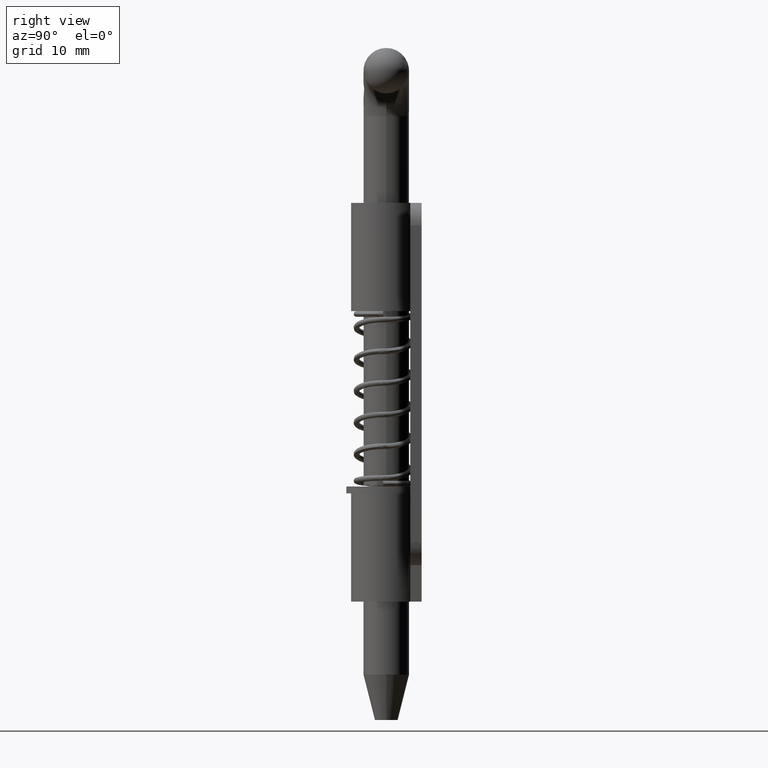
[diagram: clean part render]
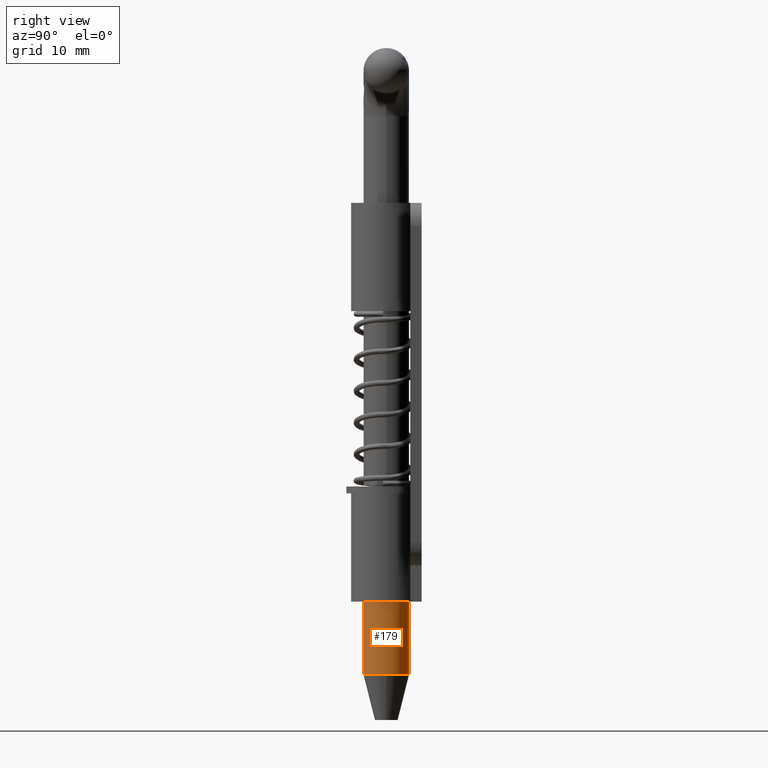
[diagram: same view with one face highlighted and labeled with its STEP entity id]
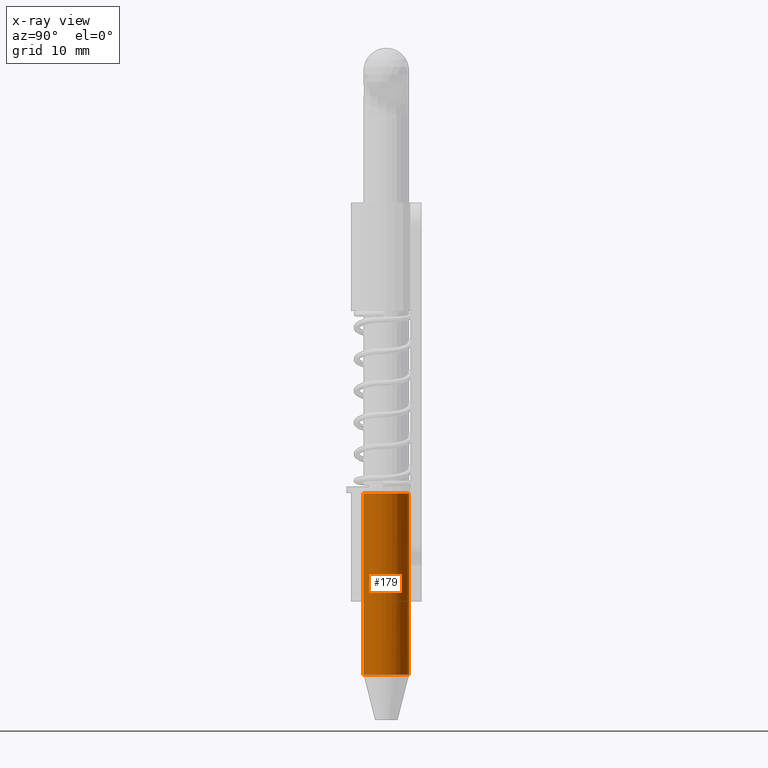
[diagram: x-ray of the same camera — body ghosted, the highlighted face saturated]
A machine part, right view. The second image highlights one B-rep face of the part: STEP entity #179.
The next image is the same camera in x-ray: the body ghosted, the highlighted face saturated — about 0% of this face is hidden behind the body in this view.
In plain terms, the highlighted cylindrical surface (edge-blend (fillet) strip) has radius 2 mm, axis along (0, 0, 1).
Its self-contained STEP definition (entity closure, byte-faithful):
#179=ADVANCED_FACE('',(#538),#537,.T.);
#537=CYLINDRICAL_SURFACE('',#1327,2.00000000000E+00);
#538=FACE_OUTER_BOUND('',#1328,.T.);
#1324=CARTESIAN_POINT('',(0.00000000000E+00,8.67292349049E-11,-7.94999980452E+00));
#1325=DIRECTION('',(0.00000000000E+00,-0.00000000000E+00,1.00000000000E+00));
#1326=DIRECTION('',(7.27366154732E-16,1.00000000000E+00,-0.00000000000E+00));
#1327=AXIS2_PLACEMENT_3D('',#1324,#1325,#1326);
#1328=EDGE_LOOP('',(#3251,#3252,#3253,#3254,#3255,#3256,#3257,#3258));
#3251=ORIENTED_EDGE('',*,*,#3625,.T.);
#3252=ORIENTED_EDGE('',*,*,#3626,.T.);
#3253=ORIENTED_EDGE('',*,*,#3621,.T.);
#3254=ORIENTED_EDGE('',*,*,#3561,.T.);
#3255=ORIENTED_EDGE('',*,*,#3545,.T.);
#3256=ORIENTED_EDGE('',*,*,#3614,.T.);
#3257=ORIENTED_EDGE('',*,*,#3539,.T.);
#3258=ORIENTED_EDGE('',*,*,#3624,.F.);
#3539=EDGE_CURVE('',#3796,#3789,#3797,.T.);
#3545=EDGE_CURVE('',#3838,#3831,#3839,.T.);
#3561=EDGE_CURVE('',#3947,#3838,#3948,.T.);
#3614=EDGE_CURVE('',#3831,#3796,#4297,.T.);
#3621=EDGE_CURVE('',#4339,#3947,#4340,.T.);
#3624=EDGE_CURVE('',#4353,#3789,#4360,.T.);
#3625=EDGE_CURVE('',#4353,#4366,#4367,.T.);
#3626=EDGE_CURVE('',#4366,#4339,#4373,.T.);
#3789=VERTEX_POINT('',#5232);
#3796=VERTEX_POINT('',#5237);
#3797=CIRCLE('',#5241,2.00000000000E+00);
#3831=VERTEX_POINT('',#5261);
#3838=VERTEX_POINT('',#5265);
#3839=CIRCLE('',#5269,2.00000000000E+00);
#3947=VERTEX_POINT('',#5335);
#3948=CIRCLE('',#5339,2.00000000000E+00);
#4297=CIRCLE('',#5559,2.00000000000E+00);
#4339=VERTEX_POINT('',#5576);
#4340=(BOUNDED_CURVE() B_SPLINE_CURVE(1,(#5577,#5578),.UNSPECIFIED.,.F.,.F.) B_SPLINE_CURVE_WITH_KNOTS((2,2),(8.33333328360E-02,9.16666665505E-01),.UNSPECIFIED.) CURVE() GEOMETRIC_REPRESENTATION_ITEM() RATIONAL_B_SPLINE_CURVE((1.00000000000E+00,1.00000000000E+00)) REPRESENTATION_ITEM('') );
#4353=VERTEX_POINT('',#5584);
#4360=(BOUNDED_CURVE() B_SPLINE_CURVE(1,(#5589,#5590),.UNSPECIFIED.,.F.,.F.) B_SPLINE_CURVE_WITH_KNOTS((2,2),(8.33333333333E-02,9.16666666667E-01),.UNSPECIFIED.) CURVE() GEOMETRIC_REPRESENTATION_ITEM() RATIONAL_B_SPLINE_CURVE((7.50000000000E-01,7.50000000000E-01)) REPRESENTATION_ITEM('') );
#4366=VERTEX_POINT('',#5591);
#4367=CIRCLE('',#5595,2.00000000000E+00);
#4373=CIRCLE('',#5599,2.00000000000E+00);
#5232=CARTESIAN_POINT('',(8.65419085602E-11,-2.00000000002E+00,0.00000000000E+00));
#5237=CARTESIAN_POINT('',(7.87446123200E-01,-1.83845821349E+00,0.00000000000E+00));
#5238=CARTESIAN_POINT('',(0.00000000000E+00,-1.92557081391E-11,0.00000000000E+00));
#5239=DIRECTION('',(-0.00000000000E+00,0.00000000000E+00,-1.00000000000E+00));
#5240=DIRECTION('',(1.03156272571E-13,1.00000000000E+00,-0.00000000000E+00));
#5241=AXIS2_PLACEMENT_3D('',#5238,#5239,#5240);
#5261=CARTESIAN_POINT('',(2.00000000000E+00,-1.92557081391E-11,0.00000000000E+00));
#5265=CARTESIAN_POINT('',(1.46446214533E+00,1.36211255964E+00,0.00000000000E+00));
#5266=CARTESIAN_POINT('',(0.00000000000E+00,-1.92557081391E-11,0.00000000000E+00));
#5267=DIRECTION('',(0.00000000000E+00,0.00000000000E+00,-1.00000000000E+00));
#5268=DIRECTION('',(-7.32231072639E-01,-6.81056279805E-01,-0.00000000000E+00));
#5269=AXIS2_PLACEMENT_3D('',#5266,#5267,#5268);
#5335=CARTESIAN_POINT('',(1.32086359982E-15,1.99999999998E+00,0.00000000000E+00));
#5336=CARTESIAN_POINT('',(0.00000000000E+00,-1.92557081391E-11,0.00000000000E+00));
#5337=DIRECTION('',(0.00000000000E+00,0.00000000000E+00,-1.00000000000E+00));
#5338=DIRECTION('',(-4.45498774776E-08,-1.00000000000E+00,-0.00000000000E+00));
#5339=AXIS2_PLACEMENT_3D('',#5336,#5337,#5338);
#5556=CARTESIAN_POINT('',(0.00000000000E+00,-1.92557081391E-11,0.00000000000E+00));
#5557=DIRECTION('',(0.00000000000E+00,0.00000000000E+00,-1.00000000000E+00));
#5558=DIRECTION('',(-1.00000000000E+00,-0.00000000000E+00,-0.00000000000E+00));
#5559=AXIS2_PLACEMENT_3D('',#5556,#5557,#5558);
#5576=CARTESIAN_POINT('',(6.66133814775E-16,2.00000000009E+00,-1.58999999999E+01));
#5577=CARTESIAN_POINT('',(1.45473230946E-15,2.00000000009E+00,-1.59000000094E+01));
#5578=CARTESIAN_POINT('',(1.45473230946E-15,2.00000000009E+00,-2.21706648595E-08));
#5584=CARTESIAN_POINT('',(-3.11369368962E-10,-1.99999999991E+00,-1.58999999999E+01));
#5589=CARTESIAN_POINT('',(-1.33226762955E-15,-1.99999999991E+00,-1.58999999999E+01));
#5590=CARTESIAN_POINT('',(-1.33226762955E-15,-1.99999999991E+00,5.92118946467E-16));
#5591=CARTESIAN_POINT('',(2.00000000000E+00,-5.85488893100E-07,-1.58999999999E+01));
#5592=CARTESIAN_POINT('',(0.00000000000E+00,8.67292349049E-11,-1.58999999999E+01));
#5593=DIRECTION('',(0.00000000000E+00,0.00000000000E+00,1.00000000000E+00));
#5594=DIRECTION('',(-1.55685006110E-10,-1.00000000000E+00,0.00000000000E+00));
#5595=AXIS2_PLACEMENT_3D('',#5592,#5593,#5594);
#5596=CARTESIAN_POINT('',(0.00000000000E+00,8.67292349049E-11,-1.58999999999E+01));
#5597=DIRECTION('',(0.00000000000E+00,0.00000000000E+00,1.00000000000E+00));
#5598=DIRECTION('',(-1.55685006110E-10,-1.00000000000E+00,0.00000000000E+00));
#5599=AXIS2_PLACEMENT_3D('',#5596,#5597,#5598);